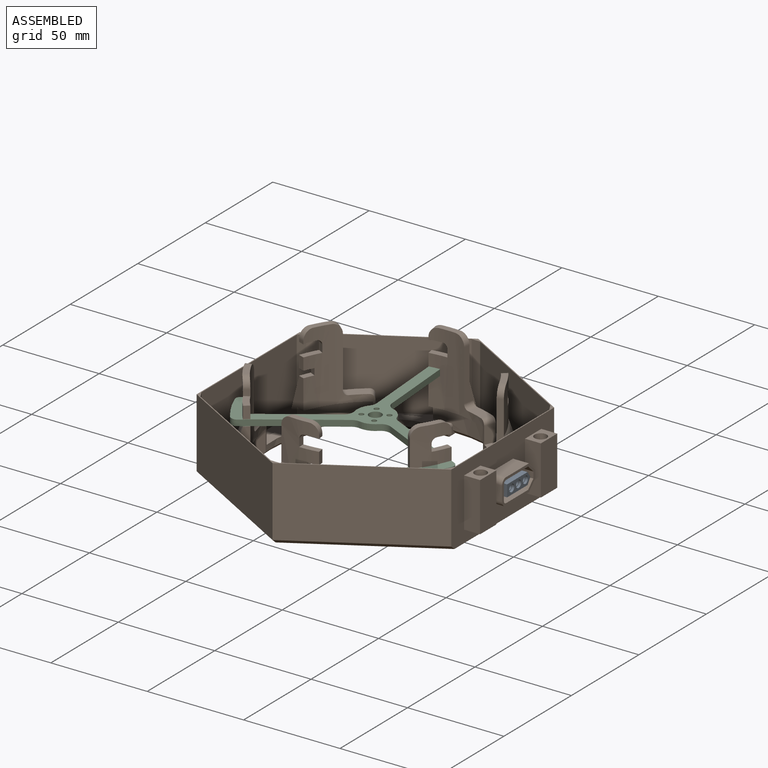
[diagram: assembled view]
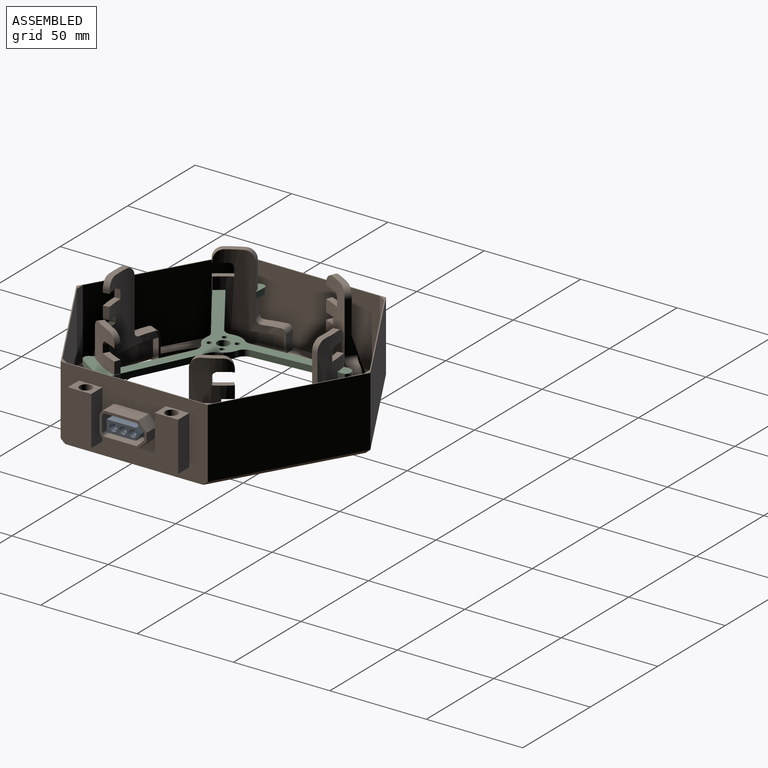
[diagram: assembled view, second angle]
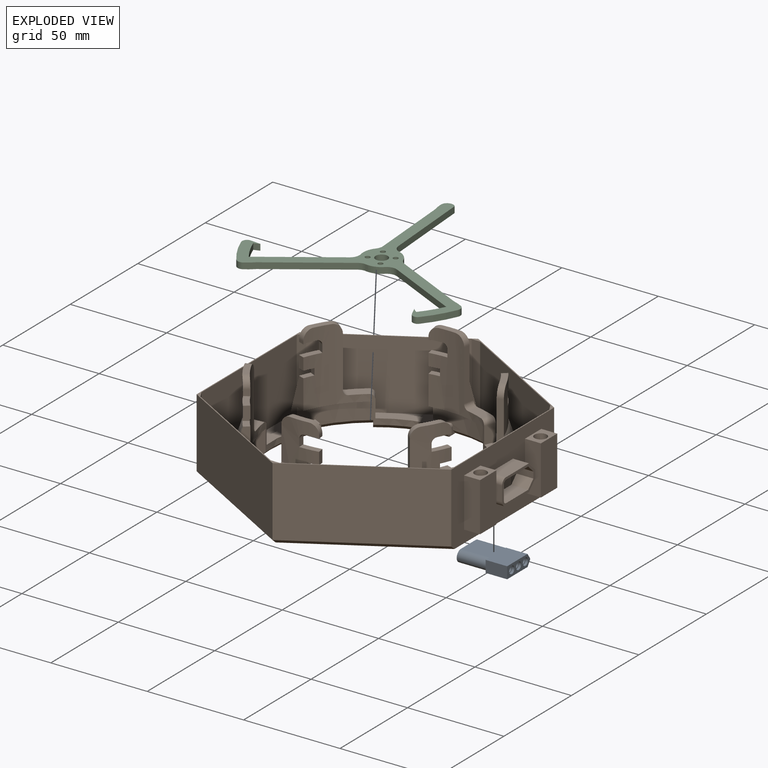
[diagram: exploded view]
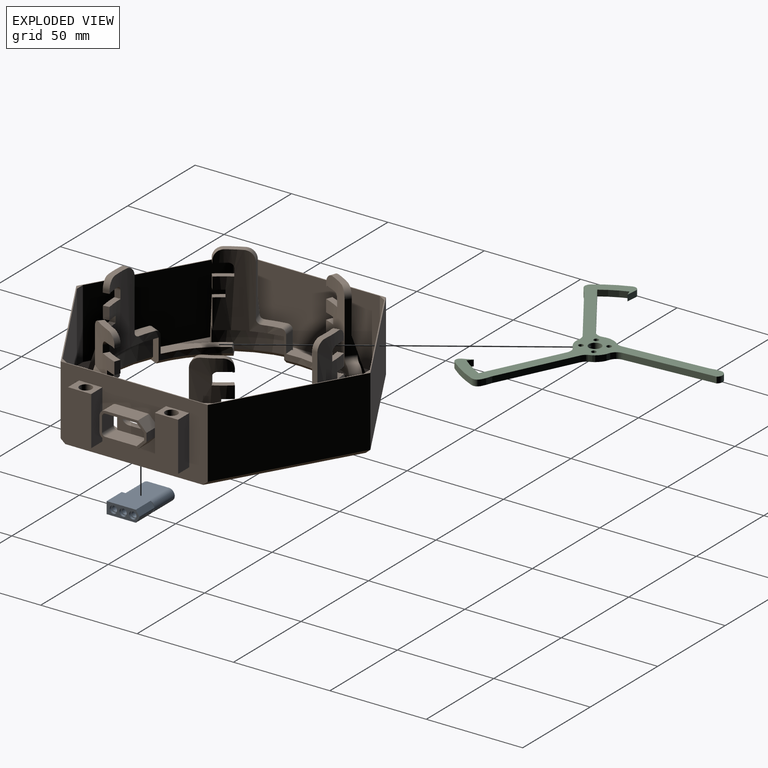
[diagram: exploded view, second angle]
ASSEMBLY  parts=3 mates=4
PART A: 33 faces, bbox 17x26.2x6.1 mm
  f0: plane 3.05x3.05mm, normal (0,1,0), area 2mm2, adj f1,f10,f11
  f1: plane 26.16x15.11mm, normal (0,0,-1), area 332.6mm2, adj f0,f2,f8,f9,f10,f11,f12,f15
  f2: plane 1.36x0.32mm, normal (0,1,0), area 0.1mm2, adj f1,f8,f15
  f3: plane 1.36x0.32mm, normal (0,1,0), area 0.1mm2, adj f6,f8,f13
  f4: plane 0.27x0.01mm, normal (0,1,0), area 0mm2, adj f8,f14,f15
  f5: plane 0.27x0.01mm, normal (0,1,0), area 0mm2, adj f8,f13,f14
  f6: plane 26.16x15.11mm, normal (0,0,1), area 332.6mm2, adj f3,f7,f8,f9,f10,f11,f12,f13
  f7: plane 3.05x3.05mm, normal (0,1,0), area 2mm2, adj f6,f10,f11
  f8: cylinder r=3.05mm len=14.99mm, axis (0,1,0), area 143.5mm2, adj f1,f2,f3,f4,f5,f6,f9,f31
  f9: plane 17.02x6.1mm, normal (0,1,0), area 71.6mm2, adj f1,f6,f8,f10,f20,f25,f30
  f10: cylinder r=3.05mm len=14.99mm, axis (0,1,0), area 143.5mm2, adj f0,f1,f6,f7,f9
  f11: plane 11.18x6.1mm, normal (1,0,0), area 68.1mm2, adj f0,f1,f6,f7,f12
  f12: plane 17.02x6.1mm, normal (0,-1,0), area 64.2mm2, adj f1,f6,f11,f13,f14,f15,f16,f21
  f13: plane 11.18x2.79mm, normal (-0.83,0,0.56), area 37.8mm2, adj f3,f5,f6,f12,f14,f31
  f14: plane 11.18x0.51mm, normal (-1,0,0), area 5.7mm2, adj f4,f5,f12,f13,f15
  f15: plane 11.18x2.79mm, normal (-0.83,0,-0.56), area 37.8mm2, adj f1,f2,f4,f12,f14,f32
  f16: cylinder r=1.91mm len=3.81mm, axis (0,-1,0), area 15.2mm2, adj f12,f17
  f17: plane 3.81x3.81mm, normal (0,-1,0), area 4.1mm2, adj f16,f18
  f18: cylinder r=1.53mm len=21.89mm, axis (0,-1,0), area 209.8mm2, adj f17,f19
  f19: plane 3.2x3.2mm, normal (0,1,0), area 0.7mm2, adj f18,f20
  f20: cylinder r=1.6mm len=3.2mm, axis (0,-1,0), area 30.2mm2, adj f9,f19
  f21: cylinder r=1.91mm len=3.81mm, axis (0,-1,0), area 15.2mm2, adj f12,f22
  f22: plane 3.81x3.81mm, normal (0,-1,0), area 4.1mm2, adj f21,f23
  f23: cylinder r=1.53mm len=21.89mm, axis (0,-1,0), area 209.8mm2, adj f22,f24
  f24: plane 3.2x3.2mm, normal (0,1,0), area 0.7mm2, adj f23,f25
  f25: cylinder r=1.6mm len=3.2mm, axis (0,-1,0), area 30.2mm2, adj f9,f24
  f26: cylinder r=1.91mm len=3.81mm, axis (0,-1,0), area 15.2mm2, adj f12,f27
  f27: plane 3.81x3.81mm, normal (0,-1,0), area 4.1mm2, adj f26,f28
  f28: cylinder r=1.53mm len=21.89mm, axis (0,-1,0), area 209.8mm2, adj f27,f29
  f29: plane 3.2x3.2mm, normal (0,1,0), area 0.7mm2, adj f28,f30
  f30: cylinder r=1.6mm len=3.2mm, axis (0,-1,0), area 30.2mm2, adj f9,f29
  f31: plane 2.46x1.67mm, normal (0,-1,0), area 0.8mm2, adj f8,f13
  f32: plane 2.46x1.67mm, normal (0,-1,0), area 0.8mm2, adj f8,f15
PART B: 275 faces, bbox 154.9x132.1x50.8 mm
  f0: plane 148.8x131.06mm, normal (0,0,-1), area 3109.7mm2, adj f1,f2,f3,f4,f5,f6,f13,f15
  f1: plane 61.13x36.07mm, normal (-0.87,-0.5,0), area 2546mm2, adj f0,f103,f271,f274
  f2: plane 61.13x36.07mm, normal (-0.87,0.5,0), area 2323.3mm2, adj f0,f103,f233,f234,f235,f236,f237,f238
  f3: plane 70.59x36.07mm, normal (0,1,0), area 2546mm2, adj f0,f103,f272,f273
  f4: plane 70.59x36.07mm, normal (0,-1,0), area 2546mm2, adj f0,f103,f269,f271
  f5: plane 61.13x36.07mm, normal (0.87,0.5,0), area 2546mm2, adj f0,f103,f270,f272
  f6: plane 61.13x36.07mm, normal (0.87,-0.5,0), area 2546mm2, adj f0,f103,f269,f270
  f7: plane 6.3x3.77mm, normal (0,0,1), area 19.3mm2, adj f44,f61,f154,f267
  f8: plane 6.91x5.35mm, normal (0,0,1), area 19.3mm2, adj f47,f69,f143,f265
  f9: plane 6.73x6.17mm, normal (0,0,1), area 19.3mm2, adj f50,f76,f132,f263
  f10: plane 6.3x3.77mm, normal (0,0,1), area 19.3mm2, adj f53,f83,f121,f261
  f11: plane 6.91x5.35mm, normal (0,0,1), area 19.3mm2, adj f30,f56,f110,f259
  f12: plane 6.73x6.17mm, normal (0,0,1), area 19.3mm2, adj f41,f60,f165,f257
  f13: cylinder r=58.1mm len=19.95mm, axis (0,0,1), area 77.3mm2, adj f0,f63,f158,f256
  f14: cylinder r=2.54mm len=4.36mm, axis (0.51,0.86,0), area 7.8mm2, adj f58,f59,f61,f256
  f15: cylinder r=58.1mm len=23.24mm, axis (0,0,1), area 77.3mm2, adj f0,f70,f147,f255
  f16: cylinder r=2.54mm len=4.77mm, axis (1,-0.01,0), area 7.8mm2, adj f67,f68,f69,f255
  f17: cylinder r=58.1mm len=24.94mm, axis (0,0,1), area 77.3mm2, adj f0,f77,f136,f254
  f18: cylinder r=2.54mm len=4.4mm, axis (0.49,-0.87,0), area 7.8mm2, adj f74,f75,f76,f254
  f19: cylinder r=58.1mm len=19.95mm, axis (0,0,1), area 77.3mm2, adj f0,f84,f125,f253
  f20: cylinder r=2.54mm len=4.36mm, axis (-0.51,-0.86,0), area 7.8mm2, adj f81,f82,f83,f253
  f21: cylinder r=58.1mm len=23.24mm, axis (0,0,1), area 77.3mm2, adj f0,f90,f114,f252
  f22: cylinder r=2.54mm len=4.77mm, axis (-1,0.01,0), area 7.8mm2, adj f30,f88,f89,f252
  f23: plane 5.91x3.35mm, normal (0.87,0.49,0), area 12.1mm2, adj f60,f62,f94,f185,f186,f251
  f24: cylinder r=58.1mm len=24.94mm, axis (0,0,1), area 77.3mm2, adj f0,f95,f169,f250
  f25: plane 14.58x13.18mm, normal (0,0,-1), area 68.2mm2, adj f34,f200,f201,f202,f210
  f26: plane 14.58x13.18mm, normal (0,0,1), area 68.2mm2, adj f34,f200,f201,f202,f206
  f27: plane 25.4x10.45mm, normal (0.87,-0.5,0), area 306.5mm2, adj f32,f33,f199,f203
  f28: plane 10.51x10.31mm, normal (0,0,-1), area 52mm2, adj f29,f30,f198,f224
  f29: cylinder r=59.06mm len=17.02mm, axis (0,0,1), area 222.9mm2, adj f0,f28,f31,f96,f114,f198,f224
  f30: cylinder r=53.34mm len=49.66mm, axis (0,0,1), area 773.3mm2, adj f11,f22,f28,f31,f37,f89,f93,f95
  f31: cylinder r=2.54mm len=4.98mm, axis (-0.82,0.57,0), area 9.3mm2, adj f29,f30,f114,f223,f224
  f32: plane 14.58x13.18mm, normal (0,0,-1), area 68.2mm2, adj f27,f34,f199,f203,f208
  f33: plane 14.58x13.18mm, normal (0,0,1), area 68.2mm2, adj f27,f34,f199,f203,f204
  f34: plane 66.04x38.13mm, normal (0.87,-0.5,0), area 1984mm2, adj f25,f26,f32,f33,f62,f100,f101,f103
  f35: plane 31.75x16.93mm, normal (0,0,1), area 157.6mm2, adj f76,f80,f81,f84
  f36: plane 33.78x9.37mm, normal (0,0,1), area 157.6mm2, adj f83,f87,f88,f90
  f37: plane 28.8x23.23mm, normal (0,0,1), area 157.6mm2, adj f30,f93,f94,f95
  f38: plane 31.75x16.93mm, normal (0,0,1), area 157.6mm2, adj f57,f58,f60,f63
  f39: plane 33.78x9.37mm, normal (0,0,1), area 157.6mm2, adj f61,f66,f67,f70
  f40: plane 28.8x23.23mm, normal (0,0,1), area 157.6mm2, adj f69,f73,f74,f77
  f41: cylinder r=56.52mm len=22.48mm, axis (0,0,1), area 351.2mm2, adj f12,f64,f65,f159,f160,f161,f162,f163
  f42: plane 10.62x7.62mm, normal (0,0,-1), area 55mm2, adj f43,f60,f188,f189
  f43: cylinder r=59.06mm len=17.02mm, axis (0,0,1), area 223.8mm2, adj f0,f42,f64,f169,f188,f189
  f44: cylinder r=56.52mm len=22.48mm, axis (0,0,1), area 351.2mm2, adj f7,f71,f72,f148,f149,f150,f151,f152
  f45: plane 10.88x8.3mm, normal (0,0,-1), area 55mm2, adj f46,f61,f190,f191
  f46: cylinder r=59.06mm len=17.02mm, axis (0,0,1), area 223.8mm2, adj f0,f45,f71,f158,f190,f191
  f47: cylinder r=56.52mm len=22.48mm, axis (0,0,1), area 351.2mm2, adj f8,f78,f79,f137,f138,f139,f140,f141
  f48: plane 10.92x10.68mm, normal (0,0,-1), area 55mm2, adj f49,f69,f192,f193
  f49: cylinder r=59.06mm len=17.02mm, axis (0,0,1), area 223.8mm2, adj f0,f48,f78,f147,f192,f193
  f50: cylinder r=56.52mm len=22.48mm, axis (0,0,1), area 351.2mm2, adj f9,f85,f86,f126,f127,f128,f129,f130
  f51: plane 10.62x7.62mm, normal (0,0,-1), area 55mm2, adj f52,f76,f194,f195
  f52: cylinder r=59.06mm len=17.02mm, axis (0,0,1), area 223.8mm2, adj f0,f51,f85,f136,f194,f195
  f53: cylinder r=56.52mm len=22.48mm, axis (0,0,1), area 351.2mm2, adj f10,f91,f92,f115,f116,f117,f118,f119
  f54: plane 10.88x8.3mm, normal (0,0,-1), area 55mm2, adj f55,f83,f196,f197
  f55: cylinder r=59.06mm len=17.02mm, axis (0,0,1), area 223.8mm2, adj f0,f54,f91,f125,f196,f197
  f56: cylinder r=56.52mm len=22.48mm, axis (0,0,1), area 351.2mm2, adj f11,f96,f97,f104,f105,f106,f107,f108
  f57: plane 12.95x6.77mm, normal (-1,0.09,0), area 61.7mm2, adj f38,f58,f60,f62,f186,f187
  f58: cylinder r=58.1mm len=31.34mm, axis (0,0,1), area 348.1mm2, adj f14,f38,f57,f59,f63,f187,f256
  f59: plane 5.85x3.56mm, normal (0.86,-0.51,0), area 16.9mm2, adj f14,f58,f61,f62,f183,f187
  f60: cylinder r=53.34mm len=60.55mm, axis (0,0,1), area 773.6mm2, adj f12,f23,f38,f42,f57,f63,f64,f65
  f61: cylinder r=53.34mm len=55.22mm, axis (0,0,1), area 774.8mm2, adj f7,f14,f39,f45,f59,f66,f70,f71
  f62: plane 148.99x128.02mm, normal (0,0,1), area 4000.7mm2, adj f23,f34,f57,f59,f66,f68,f73,f75
  f63: plane 26.29x8.98mm, normal (-0.77,0.64,0), area 143.7mm2, adj f0,f13,f38,f58,f60,f167,f175
  f64: plane 43.69x11.01mm, normal (0.94,-0.34,0), area 153.7mm2, adj f0,f41,f43,f60,f164,f175,f188
  f65: plane 6.35x2.43mm, normal (-0.77,0.64,0), area 20.2mm2, adj f41,f60,f162,f168
  f66: plane 12.95x6.16mm, normal (-0.42,0.91,0), area 61.7mm2, adj f39,f61,f62,f67,f182,f183
  f67: cylinder r=58.1mm len=33.78mm, axis (0,0,1), area 348.1mm2, adj f16,f39,f66,f68,f70,f182,f255
  f68: plane 6.79x3.56mm, normal (-0.01,-1,0), area 16.9mm2, adj f16,f62,f67,f69,f177,f182
  f69: cylinder r=53.34mm len=49.66mm, axis (0,0,1), area 774.8mm2, adj f8,f16,f40,f48,f68,f73,f77,f78
  f70: plane 26.29x11.54mm, normal (0.17,0.98,0), area 143.7mm2, adj f0,f15,f39,f61,f67,f156,f174
  f71: plane 43.69x11.54mm, normal (0.17,-0.98,0), area 153.7mm2, adj f0,f44,f46,f61,f153,f174,f190
  f72: plane 6.35x3.13mm, normal (0.17,0.98,0), area 20.2mm2, adj f44,f61,f151,f157
  f73: plane 12.95x5.57mm, normal (0.57,0.82,0), area 61.7mm2, adj f40,f62,f69,f74,f177,f178
  f74: cylinder r=58.1mm len=27.17mm, axis (0,0,1), area 348.1mm2, adj f18,f40,f73,f75,f77,f178,f254
  f75: plane 5.91x3.56mm, normal (-0.87,-0.49,0), area 16.9mm2, adj f18,f62,f74,f76,f176,f178
  f76: cylinder r=53.34mm len=60.55mm, axis (0,0,1), area 774.8mm2, adj f9,f18,f35,f51,f75,f80,f84,f85
  f77: plane 26.29x11.01mm, normal (0.94,0.34,0), area 143.7mm2, adj f0,f17,f40,f69,f74,f145,f173
  f78: plane 43.69x8.98mm, normal (-0.77,-0.64,0), area 153.7mm2, adj f0,f47,f49,f69,f142,f173,f192
  f79: plane 6.35x2.98mm, normal (0.94,0.34,0), area 20.2mm2, adj f47,f69,f140,f146
  f80: plane 12.95x6.77mm, normal (1,-0.09,0), area 61.7mm2, adj f35,f62,f76,f81,f176,f179
  f81: cylinder r=58.1mm len=31.34mm, axis (0,0,1), area 348.1mm2, adj f20,f35,f80,f82,f84,f179,f253
  f82: plane 5.85x3.56mm, normal (-0.86,0.51,0), area 16.9mm2, adj f20,f62,f81,f83,f179,f180
  f83: cylinder r=53.34mm len=55.22mm, axis (0,0,1), area 774.8mm2, adj f10,f20,f36,f54,f82,f87,f90,f91
  f84: plane 26.29x8.98mm, normal (0.77,-0.64,0), area 143.7mm2, adj f0,f19,f35,f76,f81,f134,f172
  f85: plane 43.69x11.01mm, normal (-0.94,0.34,0), area 153.7mm2, adj f0,f50,f52,f76,f131,f172,f194
  f86: plane 6.35x2.43mm, normal (0.77,-0.64,0), area 20.2mm2, adj f50,f76,f129,f135
  f87: plane 12.95x6.16mm, normal (0.42,-0.91,0), area 61.7mm2, adj f36,f62,f83,f88,f180,f181
  f88: cylinder r=58.1mm len=33.78mm, axis (0,0,1), area 348.1mm2, adj f22,f36,f87,f89,f90,f181,f252
  f89: plane 6.79x3.56mm, normal (0.01,1,0), area 16.9mm2, adj f22,f30,f62,f88,f181,f184
  f90: plane 26.29x11.54mm, normal (-0.17,-0.98,0), area 143.7mm2, adj f0,f21,f36,f83,f88,f123,f171
  f91: plane 43.69x11.54mm, normal (-0.17,0.98,0), area 153.7mm2, adj f0,f53,f55,f83,f120,f171,f196
  f92: plane 6.35x3.13mm, normal (-0.17,-0.98,0), area 20.2mm2, adj f53,f83,f118,f124
  f93: plane 12.95x5.57mm, normal (-0.57,-0.82,0), area 61.7mm2, adj f30,f37,f62,f94,f184,f185
  f94: cylinder r=58.1mm len=27.17mm, axis (0,0,1), area 349.3mm2, adj f23,f37,f93,f95,f185,f250,f251
  f95: plane 26.29x11.01mm, normal (-0.94,-0.34,0), area 143.7mm2, adj f0,f24,f30,f37,f94,f112,f170
  f96: plane 43.69x8.98mm, normal (0.77,0.64,0), area 153.7mm2, adj f0,f29,f30,f56,f109,f170,f198
  f97: plane 6.35x2.98mm, normal (-0.94,-0.34,0), area 20.2mm2, adj f30,f56,f107,f113
  f98: plane 66.04x38.13mm, normal (-0.87,0.5,0), area 2750.4mm2, adj f99,f102,f103,f227
  f99: plane 66.04x38.13mm, normal (-0.87,-0.5,0), area 2750.4mm2, adj f98,f100,f103,f226
  f100: plane 76.26x36.07mm, normal (0,-1,0), area 2750.4mm2, adj f34,f99,f103,f225
  f101: plane 66.04x38.13mm, normal (0.87,0.5,0), area 2750.4mm2, adj f34,f102,f103,f228
  f102: plane 76.26x36.07mm, normal (0,1,0), area 2750.4mm2, adj f98,f101,f103,f229
  f103: plane 152.51x132.08mm, normal (0,0,-1), area 248.3mm2, adj f1,f2,f3,f4,f5,f6,f34,f98
  f104: plane 2.98x1.52mm, normal (-0.94,-0.34,0), area 4.8mm2, adj f30,f56,f108,f260
  f105: plane 9.35x7.21mm, normal (0,0,-1), area 28.6mm2, adj f30,f56,f108,f109
  f106: plane 3.81x2.75mm, normal (-0.87,-0.5,0), area 12.1mm2, adj f30,f56,f107,f110
  f107: plane 10.01x6.91mm, normal (0,0,-1), area 30.4mm2, adj f30,f56,f97,f106
  f108: cylinder r=5.08mm len=5.94mm, axis (-0.34,0.94,0), area 25.4mm2, adj f30,f56,f104,f105
  f109: cylinder r=5.08mm len=6.09mm, axis (0.64,-0.77,0), area 25.4mm2, adj f30,f56,f96,f105
  f110: cylinder r=2.54mm len=4.07mm, axis (0.5,-0.87,0), area 12.7mm2, adj f11,f30,f56,f106
  f111: plane 3.43x2.85mm, normal (-0.9,-0.44,0), area 10.9mm2, adj f30,f56,f112,f113
  f112: plane 6.5x5.15mm, normal (0,0,-1), area 18.2mm2, adj f30,f95,f111,f170
  f113: plane 6.5x5.15mm, normal (0,0,1), area 18.2mm2, adj f30,f56,f97,f111
  f114: plane 11.94x4.68mm, normal (0.57,0.82,0), area 53.7mm2, adj f0,f21,f29,f30,f31,f252
  f115: plane 3.13x1.52mm, normal (-0.17,-0.98,0), area 4.8mm2, adj f53,f83,f119,f262
  f116: plane 9.54x3.34mm, normal (0,0,-1), area 28.6mm2, adj f53,f83,f119,f120
  f117: plane 3.81x3.18mm, normal (0,-1,0), area 12.1mm2, adj f53,f83,f118,f121
  f118: plane 9.81x3.99mm, normal (0,0,-1), area 30.4mm2, adj f53,f83,f92,f117
  f119: cylinder r=5.08mm len=5.6mm, axis (-0.98,0.17,0), area 25.4mm2, adj f53,f83,f115,f116
  f120: cylinder r=5.08mm len=5.6mm, axis (0.98,0.17,0), area 25.4mm2, adj f53,f83,f91,f116
  f121: cylinder r=2.54mm len=3.24mm, axis (1,0,0), area 12.7mm2, adj f10,f53,f83,f117
  f122: plane 3.43x3.17mm, normal (-0.07,-1,0), area 10.9mm2, adj f53,f83,f123,f124
  f123: plane 6.06x3.85mm, normal (0,0,-1), area 18.2mm2, adj f83,f90,f122,f171
  f124: plane 6.06x3.85mm, normal (0,0,1), area 18.2mm2, adj f53,f83,f92,f122
  f125: plane 11.94x5.18mm, normal (-0.42,0.91,0), area 53.7mm2, adj f0,f19,f55,f83,f197,f253
  f126: plane 2.43x2.04mm, normal (0.77,-0.64,0), area 4.8mm2, adj f50,f76,f130,f264
  f127: plane 9.35x7.21mm, normal (0,0,-1), area 28.6mm2, adj f50,f76,f130,f131
  f128: plane 3.81x2.75mm, normal (0.87,-0.5,0), area 12.1mm2, adj f50,f76,f129,f132
  f129: plane 9.66x8.08mm, normal (0,0,-1), area 30.4mm2, adj f50,f76,f86,f128
  f130: cylinder r=5.08mm len=6.09mm, axis (-0.64,-0.77,0), area 25.4mm2, adj f50,f76,f126,f127
  f131: cylinder r=5.08mm len=5.94mm, axis (0.34,0.94,0), area 25.4mm2, adj f50,f76,f85,f127
  f132: cylinder r=2.54mm len=4.07mm, axis (0.5,0.87,0), area 12.7mm2, adj f9,f50,f76,f128
  f133: plane 3.43x2.63mm, normal (0.83,-0.56,0), area 10.9mm2, adj f50,f76,f134,f135
  f134: plane 6.47x5.97mm, normal (0,0,-1), area 18.2mm2, adj f76,f84,f133,f172
  f135: plane 6.47x5.97mm, normal (0,0,1), area 18.2mm2, adj f50,f76,f86,f133
  f136: plane 11.94x5.69mm, normal (-1,0.09,0), area 53.7mm2, adj f0,f17,f52,f76,f195,f254
  f137: plane 2.98x1.52mm, normal (0.94,0.34,0), area 4.8mm2, adj f47,f69,f141,f266
  f138: plane 9.35x7.21mm, normal (0,0,-1), area 28.6mm2, adj f47,f69,f141,f142
  f139: plane 3.81x2.75mm, normal (0.87,0.5,0), area 12.1mm2, adj f47,f69,f140,f143
  f140: plane 10.01x6.91mm, normal (0,0,-1), area 30.4mm2, adj f47,f69,f79,f139
  f141: cylinder r=5.08mm len=5.94mm, axis (0.34,-0.94,0), area 25.4mm2, adj f47,f69,f137,f138
  f142: cylinder r=5.08mm len=6.09mm, axis (-0.64,0.77,0), area 25.4mm2, adj f47,f69,f78,f138
  f143: cylinder r=2.54mm len=4.07mm, axis (-0.5,0.87,0), area 12.7mm2, adj f8,f47,f69,f139
  f144: plane 3.43x2.85mm, normal (0.9,0.44,0), area 10.9mm2, adj f47,f69,f145,f146
  f145: plane 6.5x5.15mm, normal (0,0,-1), area 18.2mm2, adj f69,f77,f144,f173
  f146: plane 6.5x5.15mm, normal (0,0,1), area 18.2mm2, adj f47,f69,f79,f144
  f147: plane 11.94x4.68mm, normal (-0.57,-0.82,0), area 53.7mm2, adj f0,f15,f49,f69,f193,f255
  f148: plane 3.13x1.52mm, normal (0.17,0.98,0), area 4.8mm2, adj f44,f61,f152,f268
  f149: plane 9.54x3.34mm, normal (0,0,-1), area 28.6mm2, adj f44,f61,f152,f153
  f150: plane 3.81x3.18mm, normal (0,1,0), area 12.1mm2, adj f44,f61,f151,f154
  f151: plane 9.81x3.99mm, normal (0,0,-1), area 30.4mm2, adj f44,f61,f72,f150
  f152: cylinder r=5.08mm len=5.6mm, axis (0.98,-0.17,0), area 25.4mm2, adj f44,f61,f148,f149
  f153: cylinder r=5.08mm len=5.6mm, axis (-0.98,-0.17,0), area 25.4mm2, adj f44,f61,f71,f149
  f154: cylinder r=2.54mm len=3.24mm, axis (-1,0,0), area 12.7mm2, adj f7,f44,f61,f150
  f155: plane 3.43x3.17mm, normal (0.07,1,0), area 10.9mm2, adj f44,f61,f156,f157
  f156: plane 6.06x3.85mm, normal (0,0,-1), area 18.2mm2, adj f61,f70,f155,f174
  f157: plane 6.06x3.85mm, normal (0,0,1), area 18.2mm2, adj f44,f61,f72,f155
  f158: plane 11.94x5.18mm, normal (0.42,-0.91,0), area 53.7mm2, adj f0,f13,f46,f61,f191,f256
  f159: plane 2.43x2.04mm, normal (-0.77,0.64,0), area 4.8mm2, adj f41,f60,f163,f258
  f160: plane 9.35x7.21mm, normal (0,0,-1), area 28.6mm2, adj f41,f60,f163,f164
  f161: plane 3.81x2.75mm, normal (-0.87,0.5,0), area 12.1mm2, adj f41,f60,f162,f165
  f162: plane 9.66x8.08mm, normal (0,0,-1), area 30.4mm2, adj f41,f60,f65,f161
  f163: cylinder r=5.08mm len=6.09mm, axis (0.64,0.77,0), area 25.4mm2, adj f41,f60,f159,f160
  f164: cylinder r=5.08mm len=5.94mm, axis (-0.34,-0.94,0), area 25.4mm2, adj f41,f60,f64,f160
  f165: cylinder r=2.54mm len=4.07mm, axis (-0.5,-0.87,0), area 12.7mm2, adj f12,f41,f60,f161
  f166: plane 3.43x2.63mm, normal (-0.83,0.56,0), area 10.9mm2, adj f41,f60,f167,f168
  f167: plane 6.47x5.97mm, normal (0,0,-1), area 18.2mm2, adj f60,f63,f166,f175
  f168: plane 6.47x5.97mm, normal (0,0,1), area 18.2mm2, adj f41,f60,f65,f166
  f169: plane 11.94x5.69mm, normal (1,-0.09,0), area 53.7mm2, adj f0,f24,f43,f60,f189,f250
  f170: cone r=56.52mm half-angle=18deg, axis (0,0,1), area 586.5mm2, adj f0,f56,f95,f96,f112
  f171: cone r=56.52mm half-angle=18deg, axis (0,0,1), area 586.5mm2, adj f0,f53,f90,f91,f123
  f172: cone r=56.52mm half-angle=18deg, axis (0,0,1), area 586.5mm2, adj f0,f50,f84,f85,f134
  f173: cone r=56.52mm half-angle=18deg, axis (0,0,1), area 586.5mm2, adj f0,f47,f77,f78,f145
  f174: cone r=56.52mm half-angle=18deg, axis (0,0,1), area 586.5mm2, adj f0,f44,f70,f71,f156
  f175: cone r=56.52mm half-angle=18deg, axis (0,0,1), area 586.5mm2, adj f0,f41,f63,f64,f167
  f176: cone r=55.37mm half-angle=45deg, axis (0,0,1), area 96.8mm2, adj f62,f75,f76,f80
  f177: cone r=55.37mm half-angle=45deg, axis (0,0,1), area 96.8mm2, adj f62,f68,f69,f73
  f178: cone r=60.13mm half-angle=45deg, axis (0,0,1), area 72.9mm2, adj f62,f73,f74,f75
  f179: cone r=60.13mm half-angle=45deg, axis (0,0,1), area 72.9mm2, adj f62,f80,f81,f82
  f180: cone r=55.37mm half-angle=45deg, axis (0,0,1), area 96.8mm2, adj f62,f82,f83,f87
  f181: cone r=60.13mm half-angle=45deg, axis (0,0,1), area 72.9mm2, adj f62,f87,f88,f89
  f182: cone r=60.13mm half-angle=45deg, axis (0,0,1), area 72.9mm2, adj f62,f66,f67,f68
  f183: cone r=55.37mm half-angle=45deg, axis (0,0,1), area 96.8mm2, adj f59,f61,f62,f66
  f184: cone r=55.37mm half-angle=45deg, axis (0,0,1), area 96.8mm2, adj f30,f62,f89,f93
  f185: cone r=60.13mm half-angle=45deg, axis (0,0,1), area 72.9mm2, adj f23,f62,f93,f94
  f186: cone r=55.37mm half-angle=45deg, axis (0,0,1), area 96.8mm2, adj f23,f57,f60,f62
  f187: cone r=60.13mm half-angle=45deg, axis (0,0,1), area 72.9mm2, adj f57,f58,f59,f62
  f188: cylinder r=2.54mm len=6.3mm, axis (0.34,0.94,0), area 22.8mm2, adj f42,f43,f60,f64
  f189: cylinder r=2.54mm len=5.98mm, axis (0.09,1,0), area 22.8mm2, adj f42,f43,f60,f169
  f190: cylinder r=2.54mm len=6.13mm, axis (0.98,0.17,0), area 22.8mm2, adj f45,f46,f61,f71
  f191: cylinder r=2.54mm len=6.31mm, axis (0.91,0.42,0), area 22.8mm2, adj f45,f46,f61,f158
  f192: cylinder r=2.54mm len=6.06mm, axis (0.64,-0.77,0), area 22.8mm2, adj f48,f49,f69,f78
  f193: cylinder r=2.54mm len=6.19mm, axis (0.82,-0.57,0), area 22.8mm2, adj f48,f49,f69,f147
  f194: cylinder r=2.54mm len=6.3mm, axis (-0.34,-0.94,0), area 22.8mm2, adj f51,f52,f76,f85
  f195: cylinder r=2.54mm len=5.98mm, axis (-0.09,-1,0), area 22.8mm2, adj f51,f52,f76,f136
  f196: cylinder r=2.54mm len=6.13mm, axis (-0.98,-0.17,0), area 22.8mm2, adj f54,f55,f83,f91
  f197: cylinder r=2.54mm len=6.31mm, axis (-0.91,-0.42,0), area 22.8mm2, adj f54,f55,f83,f125
  f198: cylinder r=2.54mm len=6.06mm, axis (-0.64,0.77,0), area 22.8mm2, adj f28,f29,f30,f96
  f199: plane 25.4x7.15mm, normal (-0.5,-0.87,0), area 209.7mm2, adj f27,f32,f33,f34
  f200: plane 25.4x7.15mm, normal (0.5,0.87,0), area 209.7mm2, adj f25,f26,f34,f201
  f201: plane 25.4x10.45mm, normal (0.87,-0.5,0), area 306.5mm2, adj f25,f26,f200,f202
  f202: plane 25.4x7.15mm, normal (-0.5,-0.87,0), area 209.7mm2, adj f25,f26,f34,f201
  f203: plane 25.4x7.15mm, normal (0.5,0.87,0), area 209.7mm2, adj f27,f32,f33,f34
  f204: cylinder r=3.16mm len=6.32mm, axis (0,0,1), area 63.1mm2, adj f33,f205
  f205: plane 6.32x6.32mm, normal (0,0,1), area 31.4mm2, adj f204
  f206: cylinder r=3.16mm len=6.32mm, axis (0,0,1), area 63.1mm2, adj f26,f207
  f207: plane 6.32x6.32mm, normal (0,0,1), area 31.4mm2, adj f206
  f208: cylinder r=3.16mm len=6.32mm, axis (0,0,-1), area 63.1mm2, adj f32,f209
  f209: plane 6.32x6.32mm, normal (0,0,-1), area 31.4mm2, adj f208
  f210: cylinder r=3.16mm len=6.32mm, axis (0,0,-1), area 63.1mm2, adj f25,f211
  f211: plane 6.32x6.32mm, normal (0,0,-1), area 31.4mm2, adj f210
  f212: plane 17.78x2.75mm, normal (0.5,0.87,0), area 56.5mm2, adj f220,f221,f222,f230
  f213: plane 17.78x2.75mm, normal (-0.5,-0.87,0), area 56.5mm2, adj f214,f221,f222,f231
  f214: cylinder r=3.17mm len=4.34mm, axis (-0.87,0.5,0), area 15.8mm2, adj f213,f215,f221,f222
  f215: plane 15.89x11mm, normal (0,0,-1), area 52.4mm2, adj f214,f220,f221,f222
  f216: cylinder r=3.56mm len=7.11mm, axis (-0.87,0.5,0), area 35.5mm2, adj f217,f219,f221,f222
  f217: plane 11.05x8.21mm, normal (0,0,-1), area 34.7mm2, adj f216,f218,f221,f222
  f218: cylinder r=3.56mm len=7.11mm, axis (-0.87,0.5,0), area 35.5mm2, adj f217,f219,f221,f222
  f219: plane 11.05x8.21mm, normal (0,0,1), area 34.7mm2, adj f216,f218,f221,f222
  f220: cylinder r=3.17mm len=4.34mm, axis (-0.87,0.5,0), area 15.8mm2, adj f212,f215,f221,f222
  f221: plane 20.96x19.8mm, normal (0.87,-0.5,0), area 357.3mm2, adj f212,f213,f214,f215,f216,f217,f218,f219
  f222: plane 24.2x23.5mm, normal (-0.87,0.5,0), area 418.1mm2, adj f0,f212,f213,f214,f215,f216,f217,f218
  f223: plane 3.06x2.02mm, normal (0,0,-1), area 0.5mm2, adj f30,f31,f224
  f224: cylinder r=3.56mm len=6.47mm, axis (0.87,-0.5,0), area 15.7mm2, adj f28,f29,f30,f31,f223
  f225: plane 77.43x2.03mm, normal (0,-0.71,0.71), area 219.1mm2, adj f34,f62,f100,f226
  f226: plane 66.04x39.3mm, normal (-0.61,-0.35,0.71), area 215.8mm2, adj f62,f99,f225,f227
  f227: plane 66.04x39.3mm, normal (-0.61,0.35,0.71), area 215.8mm2, adj f62,f98,f226,f229
  f228: plane 68.07x39.3mm, normal (0.61,0.35,0.71), area 219.1mm2, adj f34,f62,f101,f229
  f229: plane 76.26x2.03mm, normal (0,0.71,0.71), area 215.8mm2, adj f62,f102,f227,f228
  f230: cylinder r=2.54mm len=6.22mm, axis (-0.87,0.5,0), area 16.4mm2, adj f0,f212,f222,f232
  f231: cylinder r=2.54mm len=6.22mm, axis (0.87,-0.5,0), area 16.4mm2, adj f0,f213,f222,f232
  f232: cylinder r=2.54mm len=25.47mm, axis (0.5,0.87,0), area 98.6mm2, adj f0,f221,f230,f231
  f233: plane 9.5x7.7mm, normal (0.35,0.61,-0.71), area 47.4mm2, adj f2,f234,f248,f249
  f234: plane 7.59x4.38mm, normal (0.5,0.87,0), area 28.6mm2, adj f2,f233,f235,f249
  f235: plane 9.5x7.7mm, normal (0.35,0.61,0.71), area 47.4mm2, adj f2,f234,f236,f249
  f236: plane 18.56x15.77mm, normal (0,0,1), area 143.4mm2, adj f2,f235,f237,f249
  f237: cylinder r=1.65mm len=8.41mm, axis (-0.87,0.5,0), area 22.7mm2, adj f2,f236,f238,f249
  f238: plane 7.62x7.59mm, normal (-0.5,-0.87,0), area 66.8mm2, adj f2,f237,f239,f249
  f239: cylinder r=1.65mm len=8.41mm, axis (-0.87,0.5,0), area 22.7mm2, adj f2,f238,f248,f249
  f240: plane 9.43x8.09mm, normal (-0.35,-0.61,-0.71), area 53.4mm2, adj f34,f241,f247,f249
  f241: plane 7.15x4.32mm, normal (-0.5,-0.87,0), area 35.7mm2, adj f34,f240,f242,f249
  f242: plane 9.43x8.09mm, normal (-0.35,-0.61,0.71), area 53.4mm2, adj f34,f241,f243,f249
  f243: plane 18.76x15.6mm, normal (0,0,1), area 139.4mm2, adj f34,f242,f244,f249
  f244: cylinder r=2.92mm len=8.61mm, axis (-0.87,0.5,0), area 37.9mm2, adj f34,f243,f245,f249
  f245: plane 7.62x7.15mm, normal (0.5,0.87,0), area 62.9mm2, adj f34,f244,f246,f249
  f246: cylinder r=2.92mm len=8.61mm, axis (-0.87,0.5,0), area 37.9mm2, adj f34,f245,f247,f249
  f247: plane 18.76x15.6mm, normal (0,0,-1), area 139.4mm2, adj f34,f240,f246,f249
  f248: plane 18.56x15.77mm, normal (0,0,-1), area 143.4mm2, adj f2,f233,f239,f249
  f249: plane 21.12x13.46mm, normal (0.87,-0.5,0), area 80.9mm2, adj f233,f234,f235,f236,f237,f238,f239,f240
  f250: plane 31.44x10.48mm, normal (0,0,-1), area 147.7mm2, adj f24,f60,f94,f169,f251
  f251: cylinder r=2.54mm len=5.45mm, axis (0.49,-0.87,0), area 19mm2, adj f23,f60,f94,f250
  f252: plane 32.35x14.4mm, normal (0,0,-1), area 157.4mm2, adj f21,f22,f30,f88,f114
  f253: plane 27.26x25.15mm, normal (0,0,-1), area 157.4mm2, adj f19,f20,f81,f83,f125
  f254: plane 33.23x11.43mm, normal (0,0,-1), area 157.4mm2, adj f17,f18,f74,f76,f136
  f255: plane 32.35x14.4mm, normal (0,0,-1), area 157.4mm2, adj f15,f16,f67,f69,f147
  f256: plane 27.26x25.15mm, normal (0,0,-1), area 157.4mm2, adj f13,f14,f58,f61,f158
  f257: plane 2.47x2mm, normal (0.78,-0.63,0), area 0.8mm2, adj f12,f41,f60,f258
  f258: plane 3.06x2.76mm, normal (0,0,1), area 3mm2, adj f41,f60,f159,f257
  f259: plane 2.96x1.14mm, normal (0.93,0.36,0), area 0.8mm2, adj f11,f30,f56,f260
  f260: plane 3.31x2.01mm, normal (0,0,1), area 3mm2, adj f30,f56,f104,f259
  f261: plane 3.14x0.5mm, normal (0.16,0.99,0), area 0.8mm2, adj f10,f53,f83,f262
  f262: plane 3.29x1.47mm, normal (0,0,1), area 3mm2, adj f53,f83,f115,f261
  f263: plane 2.47x2mm, normal (-0.78,0.63,0), area 0.8mm2, adj f9,f50,f76,f264
  f264: plane 3.06x2.76mm, normal (0,0,1), area 3mm2, adj f50,f76,f126,f263
  f265: plane 2.96x1.14mm, normal (-0.93,-0.36,0), area 0.8mm2, adj f8,f47,f69,f266
  f266: plane 3.31x2.01mm, normal (0,0,1), area 3mm2, adj f47,f69,f137,f265
  f267: plane 3.14x0.5mm, normal (-0.16,-0.99,0), area 0.8mm2, adj f7,f44,f61,f268
  f268: plane 3.29x1.47mm, normal (0,0,1), area 3mm2, adj f44,f61,f148,f267
  f269: plane 36.07x3.81mm, normal (0.5,-0.87,0), area 158.7mm2, adj f0,f4,f6,f103
  f270: plane 36.07x4.4mm, normal (1,0,0), area 158.7mm2, adj f0,f5,f6,f103
  f271: plane 36.07x3.81mm, normal (-0.5,-0.87,0), area 158.7mm2, adj f0,f1,f4,f103
  f272: plane 36.07x3.81mm, normal (0.5,0.87,0), area 158.7mm2, adj f0,f3,f5,f103
  f273: plane 36.07x3.81mm, normal (-0.5,0.87,0), area 158.7mm2, adj f0,f2,f3,f103
  f274: plane 36.07x4.4mm, normal (-1,0,0), area 158.7mm2, adj f0,f1,f2,f103
PART C: 46 faces, bbox 100x115.2x3.2 mm
  f0: plane 6.19x3.18mm, normal (0.9,-0.44,0), area 21.9mm2, adj f1,f37,f38,f39
  f1: plane 35.73x17.3mm, normal (0.9,-0.44,0), area 126mm2, adj f0,f38,f39,f40
  f2: cylinder r=9.53mm len=8.16mm, axis (0,0,1), area 28.1mm2, adj f38,f39,f40,f41
  f3: plane 35.5x24.1mm, normal (0.83,0.56,0), area 136.2mm2, adj f4,f38,f39,f41
  f4: plane 3.18x2.43mm, normal (0.77,0.64,0), area 10.1mm2, adj f3,f5,f38,f39
  f5: plane 3.18x1.94mm, normal (0.83,0.56,0), area 7.4mm2, adj f4,f6,f38,f39
  f6: cylinder r=3.17mm len=4.33mm, axis (0,0,1), area 15.4mm2, adj f5,f7,f38,f39
  f7: cylinder r=61.8mm len=15.4mm, axis (0,0,1), area 55.8mm2, adj f6,f8,f38,f39
  f8: plane 3.18x0.47mm, normal (0.31,-0.95,0), area 1.6mm2, adj f7,f9,f38,f39
  f9: cylinder r=2.54mm len=3.34mm, axis (0,0,1), area 16.1mm2, adj f8,f10,f38,f39
  f10: plane 5.3x3.18mm, normal (-1,0.1,0), area 16.9mm2, adj f9,f11,f38,f39
  f11: plane 3.18x2.98mm, normal (0.94,0.34,0), area 10.1mm2, adj f10,f12,f38,f39
  f12: cylinder r=56.52mm len=12.3mm, axis (0,0,1), area 44mm2, adj f11,f13,f38,f39
  f13: plane 3.18x2.63mm, normal (-0.83,-0.56,0), area 10.1mm2, adj f12,f14,f38,f39
  f14: plane 32.84x22.29mm, normal (-0.83,-0.56,0), area 126mm2, adj f13,f38,f39,f42
  f15: cylinder r=9.53mm len=8.3mm, axis (0,0,1), area 28.1mm2, adj f38,f39,f42,f43
  f16: plane 42.8x3.18mm, normal (0.07,-1,0), area 136.2mm2, adj f17,f38,f39,f43
  f17: plane 3.18x3.13mm, normal (0.17,-0.98,0), area 10.1mm2, adj f16,f18,f38,f39
  f18: plane 3.18x2.34mm, normal (0.07,-1,0), area 7.4mm2, adj f17,f19,f38,f39
  f19: cylinder r=3.17mm len=3.38mm, axis (0,0,1), area 15.4mm2, adj f18,f20,f38,f39
  f20: cylinder r=61.8mm len=17.53mm, axis (0,0,1), area 55.8mm2, adj f19,f21,f38,f39
  f21: plane 3.18x0.48mm, normal (-0.98,0.2,0), area 1.6mm2, adj f20,f22,f38,f39
  f22: cylinder r=2.54mm len=3.97mm, axis (0,0,1), area 16.1mm2, adj f21,f23,f38,f39
  f23: plane 4.33x3.18mm, normal (0.58,0.81,0), area 16.9mm2, adj f22,f24,f38,f39
  f24: plane 3.18x3.13mm, normal (-0.17,-0.98,0), area 10.1mm2, adj f23,f25,f38,f39
  f25: cylinder r=56.52mm len=13.79mm, axis (0,0,1), area 44mm2, adj f24,f26,f38,f39
  f26: plane 3.18x3.17mm, normal (-0.07,1,0), area 10.1mm2, adj f25,f27,f38,f39
  f27: plane 39.59x3.18mm, normal (-0.07,1,0), area 126mm2, adj f26,f38,f39,f44
  f28: cylinder r=9.53mm len=6.21mm, axis (0,0,1), area 28.1mm2, adj f38,f39,f44,f45
  f29: plane 38.62x18.7mm, normal (-0.9,0.44,0), area 136.2mm2, adj f30,f38,f39,f45
  f30: plane 3.18x2.98mm, normal (-0.94,0.34,0), area 10.1mm2, adj f29,f31,f38,f39
  f31: plane 3.18x2.11mm, normal (-0.9,0.44,0), area 7.4mm2, adj f30,f37,f38,f39
  f32: cylinder r=1.27mm len=3.18mm, axis (0,0,1), area 25.3mm2, adj f38,f39
  f33: cylinder r=3.17mm len=6.35mm, axis (0,0,1), area 63.3mm2, adj f38,f39
  f34: cylinder r=1.27mm len=3.18mm, axis (0,0,1), area 25.3mm2, adj f38,f39
  f35: cylinder r=1.27mm len=3.18mm, axis (0,0,1), area 25.3mm2, adj f38,f39
  f36: cylinder r=1.27mm len=3.18mm, axis (0,0,1), area 25.3mm2, adj f38,f39
  f37: cylinder r=3.17mm len=6.02mm, axis (0,0,1), area 26.1mm2, adj f0,f31,f38,f39
  f38: plane 115.22x99.99mm, normal (0,0,-1), area 1300.3mm2, adj f0,f1,f2,f3,f4,f5,f6,f7
  f39: plane 115.22x99.99mm, normal (0,0,1), area 1300.3mm2, adj f0,f1,f2,f3,f4,f5,f6,f7
  f40: cylinder r=5.08mm len=5.7mm, axis (0,0,1), area 19.5mm2, adj f1,f2,f38,f39
  f41: cylinder r=5.08mm len=3.72mm, axis (0,0,1), area 12.4mm2, adj f2,f3,f38,f39
  f42: cylinder r=5.08mm len=5.37mm, axis (0,0,1), area 19.5mm2, adj f14,f15,f38,f39
  f43: cylinder r=5.08mm len=3.63mm, axis (0,0,1), area 12.4mm2, adj f15,f16,f38,f39
  f44: cylinder r=5.08mm len=4.5mm, axis (0,0,1), area 19.5mm2, adj f27,f28,f38,f39
  f45: cylinder r=5.08mm len=3.18mm, axis (0,0,1), area 12.4mm2, adj f28,f29,f38,f39
PLACE A rot(axis=(0.71,-0.71,0),180deg) t=(-48.5,-117.08,-210.73)mm
PLACE B rot(axis=(-0.97,0.26,0),180deg) t=(-757.33,-414.82,-153.58)mm
PLACE C rot(axis=(0,0,1),30deg) t=(-44.18,-230.59,-246.03)mm
MATE fastened B.f144 <-> C.f26  axis (0.56,-0.83,0) through (-155.23,-147.83,-199.74)mm
MATE parallel B.f236 <-> A.f1  axis (0,0,-1) through (-39.8,-118.17,-205.27)mm
MATE cylindrical B.f216 <-> A.f8  axis (1,0,0) through (-47.35,-111.62,-210.73)mm
MATE planar B.f249 <-> A.f12  axis (1,0,0) through (-35.41,-128.01,-214.54)mm
